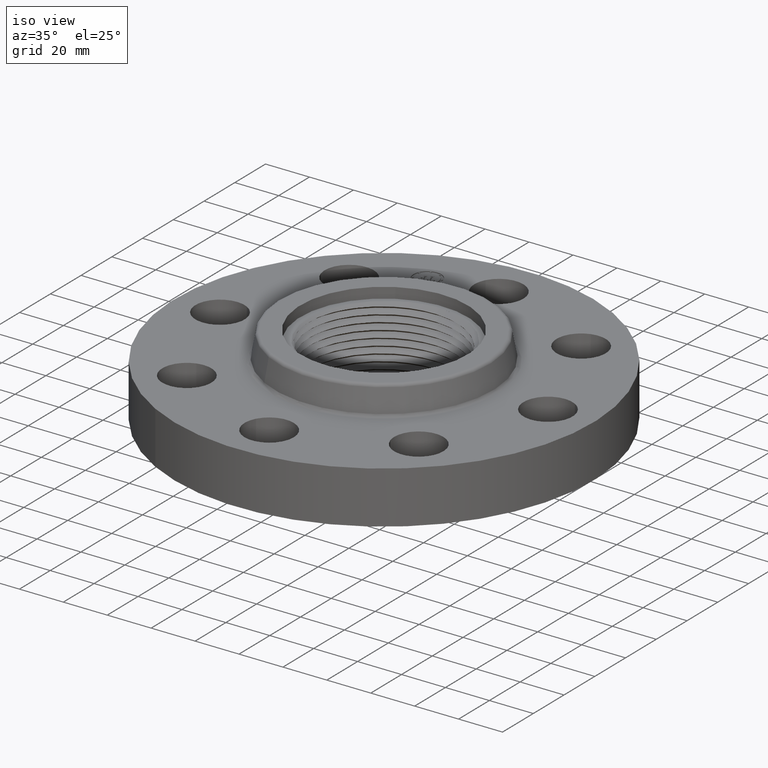
[diagram: clean part render]
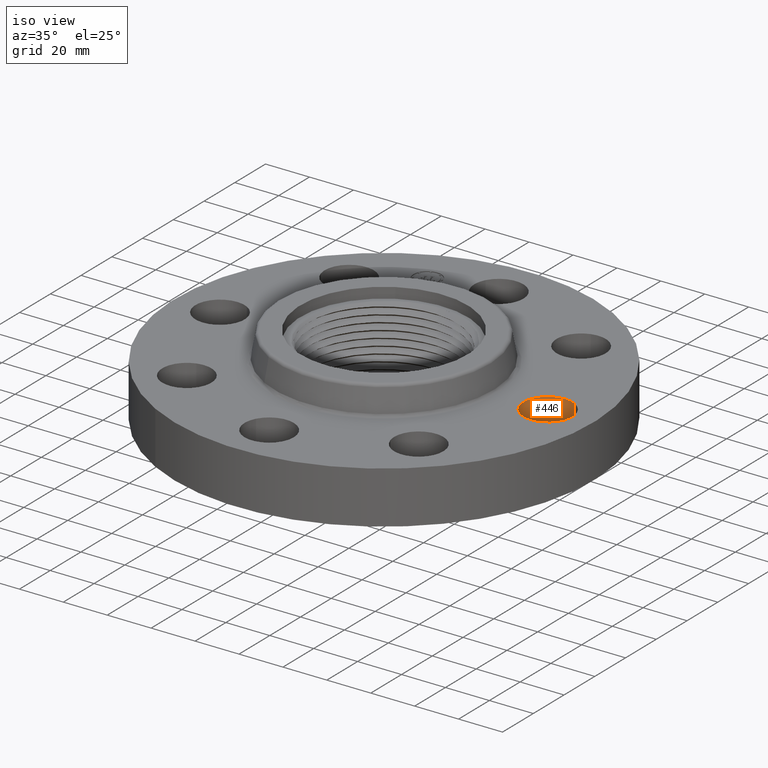
[diagram: same view with one face highlighted and labeled with its STEP entity id]
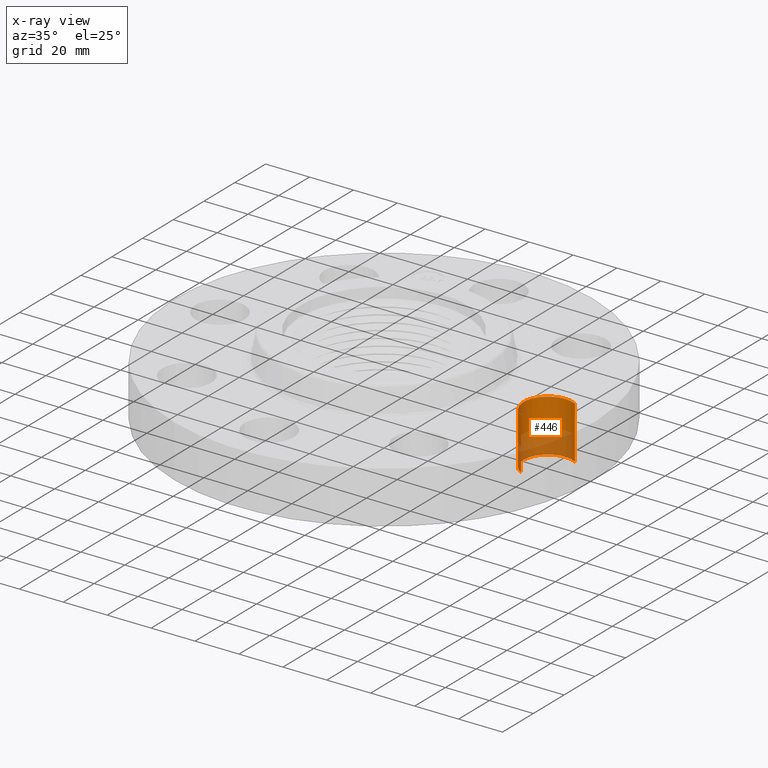
[diagram: x-ray of the same camera — body ghosted, the highlighted face saturated]
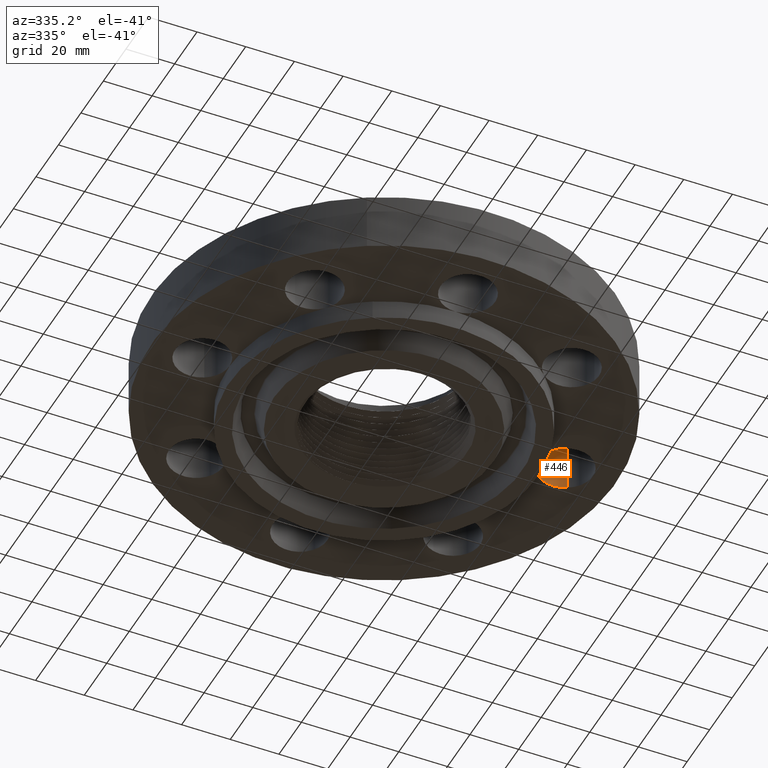
[diagram: same view with one face highlighted and labeled with its STEP entity id]
A machine part, iso view. The second image highlights one B-rep face of the part: STEP entity #446.
The next image is the same camera in x-ray: the body ghosted, the highlighted face saturated — about 43% of this face is hidden behind the body in this view.
A second angle (auxiliary view) of the same face is appended — the face is thin or edge-on in the first view.
In plain terms, the highlighted cylindrical surface (edge-blend (fillet) strip) has radius 11.176 mm, axis along (0, -0, -1).
Its self-contained STEP definition (entity closure, byte-faithful):
#402=AXIS2_PLACEMENT_3D('Cylinder Axis2P3D',#399,#400,#401) ;
#415=AXIS2_PLACEMENT_3D('Circle Axis2P3D',#413,#414,$) ;
#422=AXIS2_PLACEMENT_3D('Circle Axis2P3D',#420,#421,$) ;
#436=AXIS2_PLACEMENT_3D('Circle Axis2P3D',#434,#435,$) ;
#399=CARTESIAN_POINT('Axis2P3D Location',(2.94000000001,-3.79459389627E-016,0.93606299213)) ;
#404=CARTESIAN_POINT('Line Origine',(2.72905276303,-0.386136327233,0.470000000002)) ;
#408=CARTESIAN_POINT('Vertex',(2.72905276303,-0.386136327233,0.)) ;
#410=CARTESIAN_POINT('Vertex',(2.72905276303,-0.386136327233,0.940000000004)) ;
#413=CARTESIAN_POINT('Axis2P3D Location',(2.94000000001,-3.79459389627E-016,0.)) ;
#417=CARTESIAN_POINT('Vertex',(2.50000000001,2.79741234551E-016,0.)) ;
#420=CARTESIAN_POINT('Axis2P3D Location',(2.94000000001,-3.79459389627E-016,0.)) ;
#424=CARTESIAN_POINT('Vertex',(3.150947237,0.386136327233,0.)) ;
#427=CARTESIAN_POINT('Line Origine',(3.150947237,0.386136327233,0.470000000002)) ;
#431=CARTESIAN_POINT('Vertex',(3.150947237,0.386136327233,0.940000000004)) ;
#434=CARTESIAN_POINT('Axis2P3D Location',(2.94000000001,-3.79459389627E-016,0.940000000004)) ;
#400=DIRECTION('Axis2P3D Direction',(0.,-0.,-0.0393700787402)) ;
#401=DIRECTION('Axis2P3D XDirection',(0.0188750212049,0.0345504945626,-0.)) ;
#405=DIRECTION('Vector Direction',(0.,0.,-0.0393700787402)) ;
#414=DIRECTION('Axis2P3D Direction',(0.,-0.,-0.0393700787402)) ;
#421=DIRECTION('Axis2P3D Direction',(0.,-0.,-0.0393700787402)) ;
#428=DIRECTION('Vector Direction',(0.,0.,-0.0393700787402)) ;
#435=DIRECTION('Axis2P3D Direction',(0.,-0.,-0.0393700787402)) ;
#406=VECTOR('Line Direction',#405,0.0393700787402) ;
#429=VECTOR('Line Direction',#428,0.0393700787402) ;
#440=ORIENTED_EDGE('',*,*,#412,.F.) ;
#441=ORIENTED_EDGE('',*,*,#419,.T.) ;
#442=ORIENTED_EDGE('',*,*,#426,.T.) ;
#443=ORIENTED_EDGE('',*,*,#433,.T.) ;
#444=ORIENTED_EDGE('',*,*,#438,.F.) ;
#446=ADVANCED_FACE('PartBody',(#445),#403,.F.) ;
#416=CIRCLE('generated circle',#415,0.440000000002) ;
#423=CIRCLE('generated circle',#422,0.440000000002) ;
#437=CIRCLE('generated circle',#436,0.440000000002) ;
#403=CYLINDRICAL_SURFACE('generated cylinder',#402,0.440000000002) ;
#412=EDGE_CURVE('',#409,#411,#407,.F.) ;
#419=EDGE_CURVE('',#409,#418,#416,.T.) ;
#426=EDGE_CURVE('',#418,#425,#423,.T.) ;
#433=EDGE_CURVE('',#425,#432,#430,.F.) ;
#438=EDGE_CURVE('',#411,#432,#437,.T.) ;
#439=EDGE_LOOP('',(#440,#441,#442,#443,#444)) ;
#445=FACE_OUTER_BOUND('',#439,.T.) ;
#407=LINE('Line',#404,#406) ;
#430=LINE('Line',#427,#429) ;
#409=VERTEX_POINT('',#408) ;
#411=VERTEX_POINT('',#410) ;
#418=VERTEX_POINT('',#417) ;
#425=VERTEX_POINT('',#424) ;
#432=VERTEX_POINT('',#431) ;